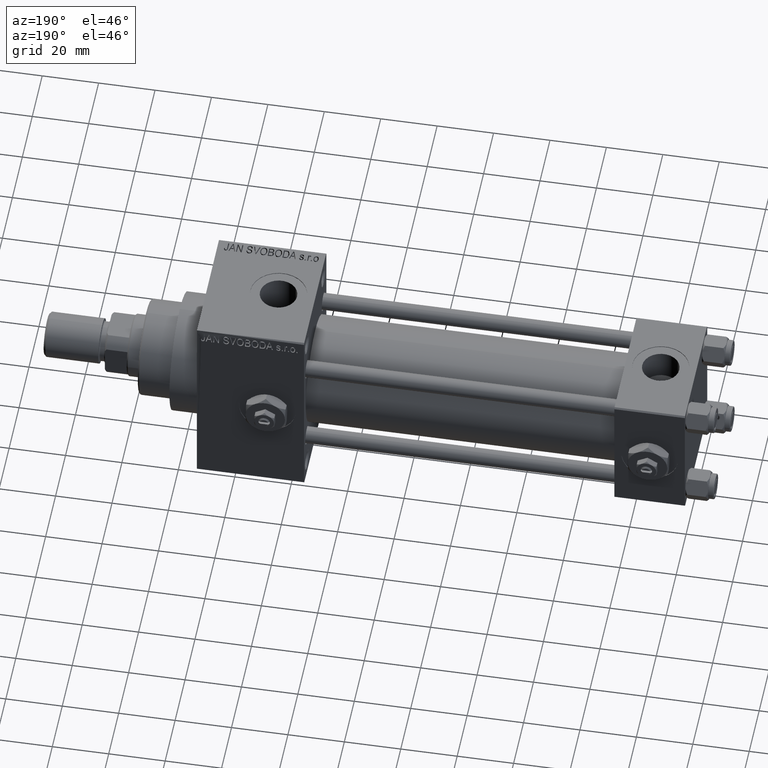
[diagram: clean part render]
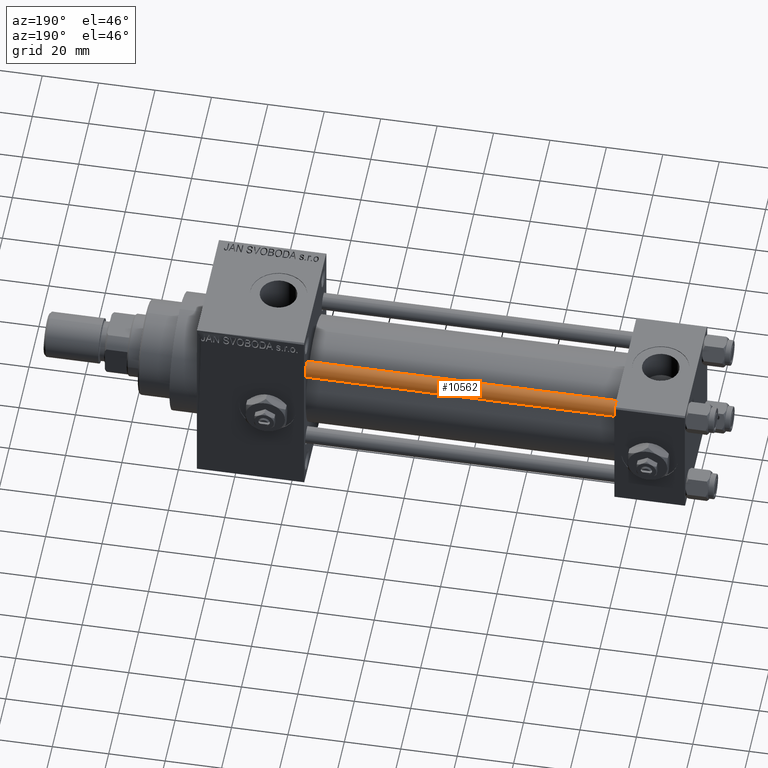
[diagram: same view with one face highlighted and labeled with its STEP entity id]
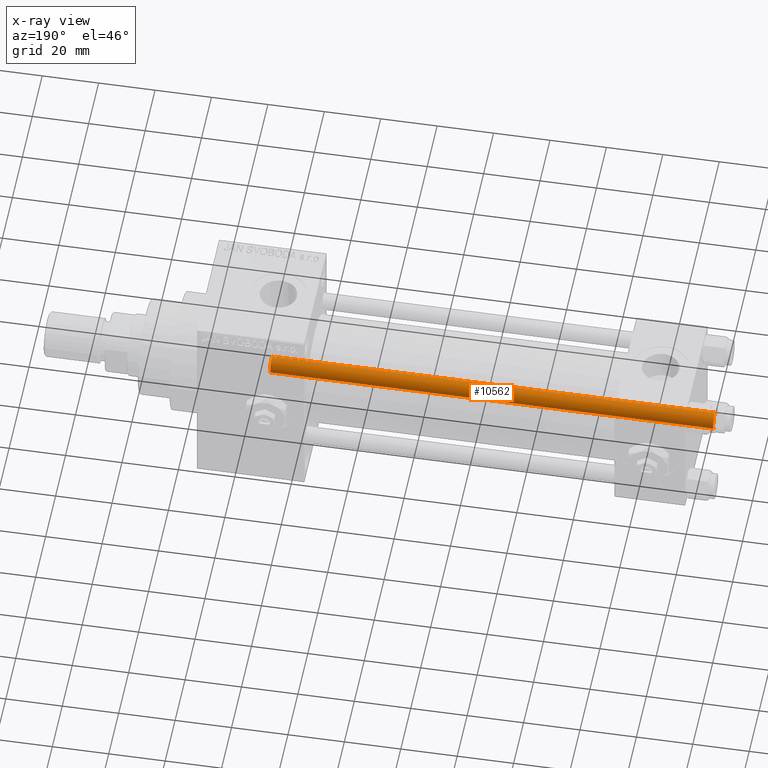
[diagram: x-ray of the same camera — body ghosted, the highlighted face saturated]
A machine part, auxiliary view. The second image highlights one B-rep face of the part: STEP entity #10562.
The next image is the same camera in x-ray: the body ghosted, the highlighted face saturated — about 0% of this face is hidden behind the body in this view.
In plain terms, the highlighted cylindrical surface (edge-blend (fillet) strip) has radius 3 mm, axis along (-1, -0, 0).
Its self-contained STEP definition (entity closure, byte-faithful):
#115 = VECTOR ( 'NONE', #10477, 1000.000000000000000 ) ;
#1800 = FACE_OUTER_BOUND ( 'NONE', #39648, .T. ) ;
#2036 = DIRECTION ( 'NONE',  ( -1.000000000000000000, 0.000000000000000000, 0.000000000000000000 ) ) ;
#2696 = DIRECTION ( 'NONE',  ( -0.000000000000000000, -0.000000000000000000, -1.000000000000000000 ) ) ;
#4125 = VERTEX_POINT ( 'NONE', #7329 ) ;
#5055 = CARTESIAN_POINT ( 'NONE',  ( 0.000000000000000000, 0.000000000000000000, 158.0000000000000000 ) ) ;
#6750 = DIRECTION ( 'NONE',  ( 1.000000000000000000, 0.000000000000000000, 0.000000000000000000 ) ) ;
#6955 = CARTESIAN_POINT ( 'NONE',  ( 3.000000000000000444, 3.673940397442060361E-16, 158.0000000000000000 ) ) ;
#7223 = CARTESIAN_POINT ( 'NONE',  ( -3.000000000000000444, 0.000000000000000000, 158.0000000000000000 ) ) ;
#7329 = CARTESIAN_POINT ( 'NONE',  ( 3.000000000000000444, 3.673940397442060361E-16, 157.5000000000000000 ) ) ;
#8437 = EDGE_CURVE ( 'NONE', #4125, #41541, #34338, .T. ) ;
#8483 = ORIENTED_EDGE ( 'NONE', *, *, #30317, .T. ) ;
#8986 = VERTEX_POINT ( 'NONE', #37970 ) ;
#9536 = CARTESIAN_POINT ( 'NONE',  ( 0.000000000000000000, 0.000000000000000000, 157.5000000000000000 ) ) ;
#10477 = DIRECTION ( 'NONE',  ( -0.000000000000000000, -0.000000000000000000, -1.000000000000000000 ) ) ;
#10562 = ADVANCED_FACE ( 'NONE', ( #1800 ), #32203, .T. ) ;
#15686 = CARTESIAN_POINT ( 'NONE',  ( 3.000000000000000444, 3.673940397442060361E-16, 0.5000000000000281997 ) ) ;
#17073 = DIRECTION ( 'NONE',  ( 1.000000000000000000, 0.000000000000000000, 0.000000000000000000 ) ) ;
#17321 = DIRECTION ( 'NONE',  ( 0.000000000000000000, 0.000000000000000000, -1.000000000000000000 ) ) ;
#17449 = VECTOR ( 'NONE', #2696, 1000.000000000000000 ) ;
#17603 = CARTESIAN_POINT ( 'NONE',  ( -3.000000000000000444, 0.000000000000000000, 0.5000000000000281997 ) ) ;
#22072 = EDGE_CURVE ( 'NONE', #41541, #26529, #35030, .T. ) ;
#22571 = CARTESIAN_POINT ( 'NONE',  ( 0.000000000000000000, 0.000000000000000000, 0.5000000000000281997 ) ) ;
#26529 = VERTEX_POINT ( 'NONE', #17603 ) ;
#26972 = EDGE_CURVE ( 'NONE', #8986, #26529, #45148, .T. ) ;
#27094 = ORIENTED_EDGE ( 'NONE', *, *, #22072, .T. ) ;
#28311 = ORIENTED_EDGE ( 'NONE', *, *, #8437, .T. ) ;
#29624 = DIRECTION ( 'NONE',  ( -0.000000000000000000, -0.000000000000000000, 1.000000000000000000 ) ) ;
#30317 = EDGE_CURVE ( 'NONE', #8986, #4125, #48013, .T. ) ;
#32203 = CYLINDRICAL_SURFACE ( 'NONE', #34668, 3.000000000000000444 ) ;
#34338 = LINE ( 'NONE', #6955, #115 ) ;
#34668 = AXIS2_PLACEMENT_3D ( 'NONE', #5055, #47500, #2036 ) ;
#35030 = CIRCLE ( 'NONE', #48652, 3.000000000000000444 ) ;
#35688 = ORIENTED_EDGE ( 'NONE', *, *, #26972, .F. ) ;
#37970 = CARTESIAN_POINT ( 'NONE',  ( -3.000000000000000444, 0.000000000000000000, 157.5000000000000000 ) ) ;
#38415 = AXIS2_PLACEMENT_3D ( 'NONE', #9536, #17321, #17073 ) ;
#39648 = EDGE_LOOP ( 'NONE', ( #8483, #28311, #27094, #35688 ) ) ;
#41541 = VERTEX_POINT ( 'NONE', #15686 ) ;
#45148 = LINE ( 'NONE', #7223, #17449 ) ;
#47500 = DIRECTION ( 'NONE',  ( -0.000000000000000000, -0.000000000000000000, -1.000000000000000000 ) ) ;
#48013 = CIRCLE ( 'NONE', #38415, 3.000000000000000444 ) ;
#48652 = AXIS2_PLACEMENT_3D ( 'NONE', #22571, #29624, #6750 ) ;